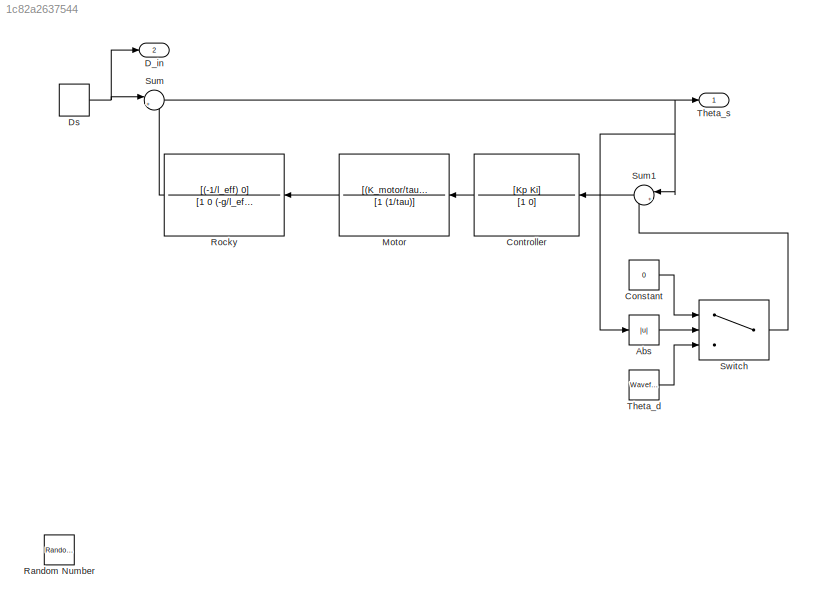
MODEL slx_1c82a2637544
KIND model
CONFIG AbsTol = auto
CONFIG EnableMultiTasking = off
CONFIG FixedStep = auto
CONFIG MaxStep = auto
CONFIG MinStep = auto
CONFIG RelTol = 1e-3
CONFIG SampleTimeConstraint = Unconstrained
CONFIG SolverName = VariableStepAuto
CONFIG StartTime = 0.0
CONFIG StopTime = 30
BLOCK [Abs] Abs
  SaturateOnIntegerOverflow = off
BLOCK [Constant] Constant
  Value = 0
BLOCK [TransferFcn] Controller
  Denominator = [1 0]
  Numerator = [Kp Ki]
BLOCK [Outport] D_in
  Port = 2
BLOCK [DiscretePulseGenerator] Ds
  Amplitude = 0.5
  Period = 10
  PhaseDelay = 1
  Ports = [0, 1]
  PulseType = Time based
BLOCK [TransferFcn] Motor
  Denominator = [1 (1/tau)]
  Numerator = [(K_motor/tau)]
BLOCK [RandomNumber] Random Number
  SampleTime = 0.01
  Variance = 0.00000001
BLOCK [TransferFcn] Rocky
  Denominator = [1 0 (-g/l_eff)]
  Numerator = [(-1/l_eff) 0]
BLOCK [Sum] Sum
  Inputs = |++
  Ports = [2, 1]
BLOCK [Sum] Sum1
  Inputs = |++
  Ports = [2, 1]
BLOCK [Switch] Switch
  Criteria = u2 > Threshold
  InputSameDT = off
  SaturateOnIntegerOverflow = off
  Threshold = 0.25
  ZeroCross = off
BLOCK [Reference] Theta_d  REF=simulink/Sources/Waveform
Generator
  Ports = [0, 1]
  SourceBlock = simulink/Sources/Waveform\nGenerator
  SourceProductBaseCode = SL
  SourceType = WaveformGenerator
BLOCK [Outport] Theta_s
LINE Abs:1 -> Switch:2
LINE Constant:1 -> Switch:1
LINE Controller:1 -> Motor:1
NET Ds:1 -> D_in:1, Sum:1
LINE Motor:1 -> Rocky:1
LINE Rocky:1 -> Sum:2
LINE Sum1:1 -> Controller:1
NET Sum:1 -> Abs:1, Sum1:1, Theta_s:1
LINE Switch:1 -> Sum1:2
LINE Theta_d:1 -> Switch:3
note: NET lines group one-source signal fan-out (src -> all destinations, sorted); 1:1 wires keep LINE
